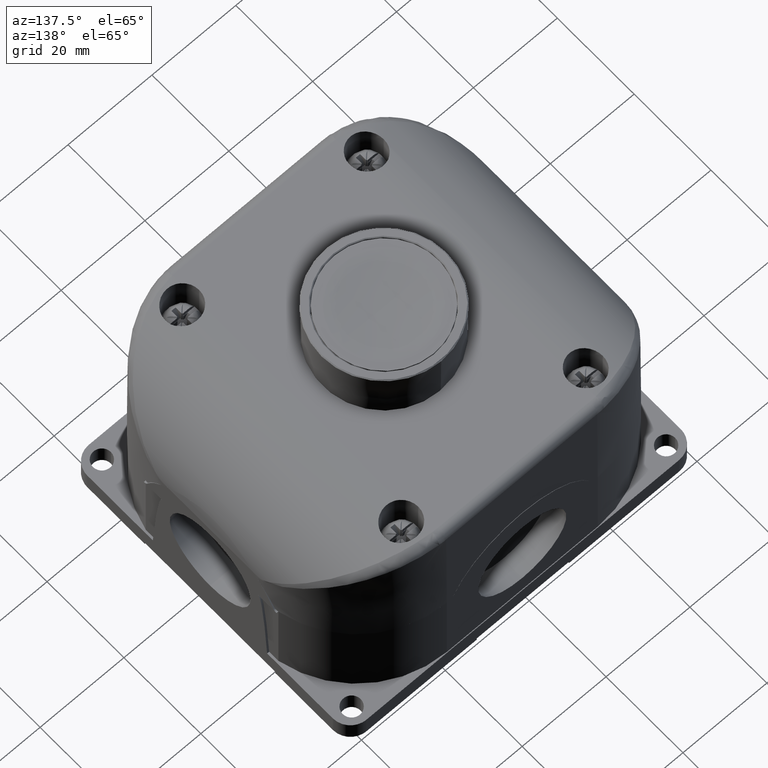
[diagram: clean part render]
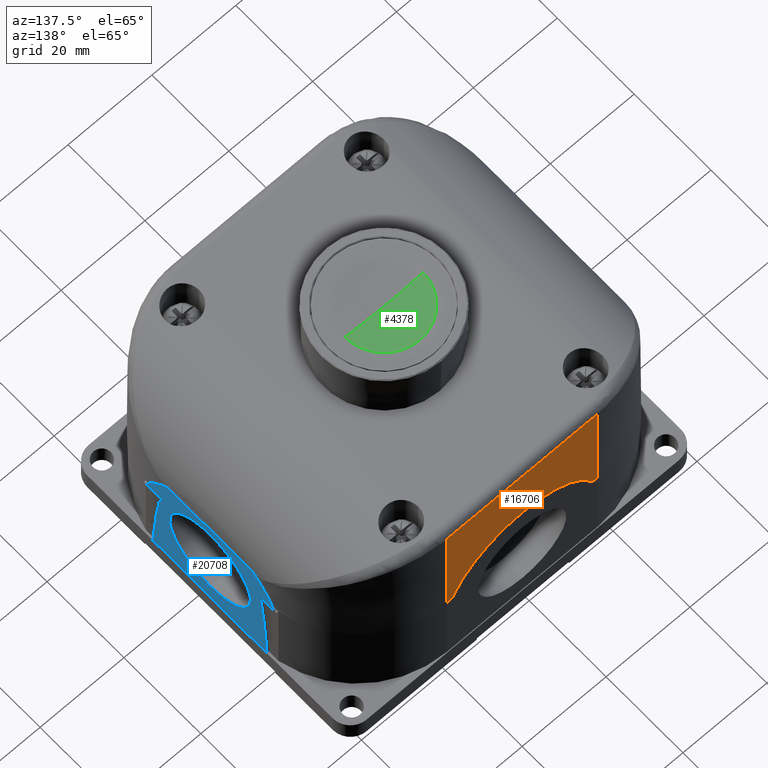
[diagram: same view with three faces highlighted in distinct colors, each labeled with its STEP entity id]
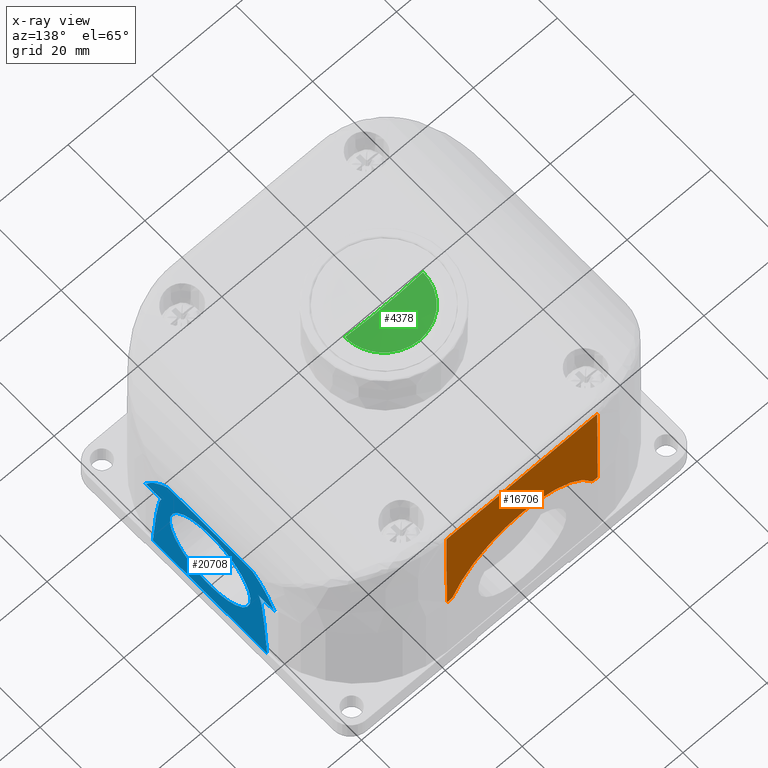
[diagram: x-ray of the same camera — body ghosted, the three highlighted faces saturated]
A machine part, auxiliary view with three faces highlighted in distinct colors.
The next image is the same camera in x-ray (body ghosted, the three faces saturated) — at least one of them is partly hidden behind the body in this view.
Their STEP definitions:

[orange] entity #16706 — the highlighted planar face has unit normal (-0, 1, 0.0058).
#103 = CARTESIAN_POINT ( 'NONE',  ( 1.345744952606165334, -0.008360267248026194420, 1.437007874015747699 ) ) ;
#141 = CARTESIAN_POINT ( 'NONE',  ( 2.450787401574803237, -0.01175284891510926591, 2.020143128453149473 ) ) ;
#198 = EDGE_CURVE ( 'NONE', #20176, #6008, #20568, .T. ) ;
#368 = LINE ( 'NONE', #15123, #9304 ) ;
#960 = CARTESIAN_POINT ( 'NONE',  ( 1.633858267716535195, -0.008360267248026164930, 1.437007874015747921 ) ) ;
#1180 = VERTEX_POINT ( 'NONE', #8136 ) ;
#1527 = CARTESIAN_POINT ( 'NONE',  ( 1.104055193975023386, -0.007447862674232420301, 1.280178849544168385 ) ) ;
#1737 = DIRECTION ( 'NONE',  ( 0.000000000000000000, -0.005817731354993830803, 0.9999830768577441242 ) ) ;
#1853 = DIRECTION ( 'NONE',  ( -1.000000000000000000, -0.000000000000000000, 0.000000000000000000 ) ) ;
#2308 = CARTESIAN_POINT ( 'NONE',  ( 2.342519685039369914, -0.005794924969179654842, 0.9960629921259841479 ) ) ;
#2571 = ORIENTED_EDGE ( 'NONE', *, *, #8994, .T. ) ;
#2791 = CARTESIAN_POINT ( 'NONE',  ( 1.633858267716535195, -0.008360267248026164930, 1.437007874015747921 ) ) ;
#3793 = CARTESIAN_POINT ( 'NONE',  ( 0.9866756952263551206, -0.005917084125315414701, 1.017060367454067915 ) ) ;
#4124 = EDGE_CURVE ( 'NONE', #6008, #16084, #5683, .T. ) ;
#4249 = ORIENTED_EDGE ( 'NONE', *, *, #14868, .T. ) ;
#4346 = ORIENTED_EDGE ( 'NONE', *, *, #198, .T. ) ;
#4736 = VECTOR ( 'NONE', #22420, 39.37007874015748143 ) ;
#4888 = EDGE_CURVE ( 'NONE', #9812, #17733, #10079, .T. ) ;
#4953 = CARTESIAN_POINT ( 'NONE',  ( 2.313399968831224562, -0.005794924969179654842, 0.9960629921259841479 ) ) ;
#5543 = ORIENTED_EDGE ( 'NONE', *, *, #7981, .T. ) ;
#5656 = EDGE_CURVE ( 'NONE', #21848, #20176, #10199, .T. ) ;
#5683 =( BOUNDED_CURVE ( )  B_SPLINE_CURVE ( 3, ( #17387, #19293, #10481, #960 ),
 .UNSPECIFIED., .F., .F. ) 
 B_SPLINE_CURVE_WITH_KNOTS ( ( 4, 4 ),
 ( 1.990409723052550151, 3.141592653589775352 ),
 .UNSPECIFIED. ) 
 CURVE ( )  GEOMETRIC_REPRESENTATION_ITEM ( )  RATIONAL_B_SPLINE_CURVE ( ( 1.000000000000000000, 0.8925803308407000980, 0.8925803308407000980, 1.000000000000000000 ) ) 
 REPRESENTATION_ITEM ( '' )  );
#6008 = VERTEX_POINT ( 'NONE', #6624 ) ;
#6624 = CARTESIAN_POINT ( 'NONE',  ( 2.281040836543564154, -0.005917084173087514345, 1.017060375665409078 ) ) ;
#7118 = ORIENTED_EDGE ( 'NONE', *, *, #4888, .T. ) ;
#7560 = CARTESIAN_POINT ( 'NONE',  ( 2.286909809592913234, -0.005840545218063295657, 1.003904446820571783 ) ) ;
#7981 = EDGE_CURVE ( 'NONE', #1180, #21848, #368, .T. ) ;
#8136 = CARTESIAN_POINT ( 'NONE',  ( 2.342519685039369914, -0.01175284891510981235, 2.020143128453149473 ) ) ;
#8291 = DIRECTION ( 'NONE',  ( 0.000000000000000000, -0.005817731354993830803, 0.9999830768577441242 ) ) ;
#8472 = AXIS2_PLACEMENT_3D ( 'NONE', #16508, #16269, #1737 ) ;
#8873 = EDGE_LOOP ( 'NONE', ( #12049, #2571, #7118, #17680, #5543, #20980, #4346, #10386, #4249 ) ) ;
#8994 = EDGE_CURVE ( 'NONE', #9803, #9812, #21892, .T. ) ;
#9249 = FACE_OUTER_BOUND ( 'NONE', #8873, .T. ) ;
#9304 = VECTOR ( 'NONE', #14657, 39.37007874015748143 ) ;
#9544 = LINE ( 'NONE', #141, #4736 ) ;
#9568 = CARTESIAN_POINT ( 'NONE',  ( 2.313399968831224562, -0.005794924969179654842, 0.9960629921259841479 ) ) ;
#9576 = EDGE_CURVE ( 'NONE', #1180, #17733, #9544, .T. ) ;
#9803 = VERTEX_POINT ( 'NONE', #21316 ) ;
#9812 = VERTEX_POINT ( 'NONE', #14514 ) ;
#9965 = CARTESIAN_POINT ( 'NONE',  ( 0.9251968503936995880, -0.005794924969179928061, 0.9960629921259841479 ) ) ;
#10079 = LINE ( 'NONE', #9965, #23161 ) ;
#10199 = LINE ( 'NONE', #17452, #20875 ) ;
#10204 = CARTESIAN_POINT ( 'NONE',  ( 0.9866756952263551206, -0.005917084125315414701, 1.017060367454067915 ) ) ;
#10386 = ORIENTED_EDGE ( 'NONE', *, *, #4124, .T. ) ;
#10455 = CARTESIAN_POINT ( 'NONE',  ( 0.9251968503937003652, -0.01175284891511090522, 2.020143128453149473 ) ) ;
#10481 = CARTESIAN_POINT ( 'NONE',  ( 1.921971579267031993, -0.008360267248026137174, 1.437007874015748810 ) ) ;
#11003 = CARTESIAN_POINT ( 'NONE',  ( 2.298994299515833006, -0.005794924969179864743, 0.9960629921259840369 ) ) ;
#11603 = CARTESIAN_POINT ( 'NONE',  ( 0.9808067202889217961, -0.005840545197869550544, 1.003904443349562969 ) ) ;
#12049 = ORIENTED_EDGE ( 'NONE', *, *, #17210, .T. ) ;
#12698 =( BOUNDED_CURVE ( )  B_SPLINE_CURVE ( 3, ( #18075, #103, #1527, #3793 ),
 .UNSPECIFIED., .F., .T. ) 
 B_SPLINE_CURVE_WITH_KNOTS ( ( 4, 4 ),
 ( 3.141592653589775352, 4.292775596814826677 ),
 .UNSPECIFIED. ) 
 CURVE ( )  GEOMETRIC_REPRESENTATION_ITEM ( )  RATIONAL_B_SPLINE_CURVE ( ( 1.000000000000000000, 0.8925803285385742747, 0.8925803285385742747, 1.000000000000000000 ) ) 
 REPRESENTATION_ITEM ( '' )  );
#13652 = DIRECTION ( 'NONE',  ( -1.000000000000000000, -0.000000000000000000, 0.000000000000000000 ) ) ;
#13883 = VECTOR ( 'NONE', #1853, 39.37007874015748143 ) ;
#14514 = CARTESIAN_POINT ( 'NONE',  ( 0.9251968503937001431, -0.005794924969179654842, 0.9960629921259841479 ) ) ;
#14657 = DIRECTION ( 'NONE',  ( -0.000000000000000000, 0.005817731354993830803, -0.9999830768577441242 ) ) ;
#14810 = CARTESIAN_POINT ( 'NONE',  ( 2.281040836543564154, -0.005917084173087514345, 1.017060375665409078 ) ) ;
#14868 = EDGE_CURVE ( 'NONE', #16084, #15900, #12698, .T. ) ;
#15123 = CARTESIAN_POINT ( 'NONE',  ( 2.342519685039369470, -0.005794924969179654842, 0.9960629921259841479 ) ) ;
#15890 =( BOUNDED_CURVE ( )  B_SPLINE_CURVE ( 3, ( #19098, #11603, #18978, #18862 ),
 .UNSPECIFIED., .F., .F. ) 
 B_SPLINE_CURVE_WITH_KNOTS ( ( 4, 4 ),
 ( 1.990409710364767326, 3.141592653589811324 ),
 .UNSPECIFIED. ) 
 CURVE ( )  GEOMETRIC_REPRESENTATION_ITEM ( )  RATIONAL_B_SPLINE_CURVE ( ( 1.000000000000000000, 0.8925803285385756070, 0.8925803285385756070, 1.000000000000000000 ) ) 
 REPRESENTATION_ITEM ( '' )  );
#15900 = VERTEX_POINT ( 'NONE', #10204 ) ;
#16084 = VERTEX_POINT ( 'NONE', #2791 ) ;
#16267 = CARTESIAN_POINT ( 'NONE',  ( 2.625236719564799426, -0.005794924969179654842, 0.9960629921259841479 ) ) ;
#16269 = DIRECTION ( 'NONE',  ( -1.070076372205279976E-16, 0.9999830768577442353, 0.005817731354993831670 ) ) ;
#16508 = CARTESIAN_POINT ( 'NONE',  ( 3.267716535433071279, -0.005794924969179654842, 0.9960629921259841479 ) ) ;
#16706 = ADVANCED_FACE ( 'NONE', ( #9249 ), #19720, .T. ) ;
#17210 = EDGE_CURVE ( 'NONE', #15900, #9803, #15890, .T. ) ;
#17387 = CARTESIAN_POINT ( 'NONE',  ( 2.281040836543564154, -0.005917084173087514345, 1.017060375665409078 ) ) ;
#17452 = CARTESIAN_POINT ( 'NONE',  ( 2.625236719564799426, -0.005794924969179654842, 0.9960629921259841479 ) ) ;
#17680 = ORIENTED_EDGE ( 'NONE', *, *, #9576, .F. ) ;
#17733 = VERTEX_POINT ( 'NONE', #10455 ) ;
#18075 = CARTESIAN_POINT ( 'NONE',  ( 1.633858267716535195, -0.008360267248026164930, 1.437007874015747921 ) ) ;
#18862 = CARTESIAN_POINT ( 'NONE',  ( 0.9543165666018463833, -0.005794924969179654842, 0.9960629921259841479 ) ) ;
#18978 = CARTESIAN_POINT ( 'NONE',  ( 0.9687222323573649874, -0.005794924969179863876, 0.9960629921259841479 ) ) ;
#19098 = CARTESIAN_POINT ( 'NONE',  ( 0.9866756952263551206, -0.005917084125315414701, 1.017060367454067915 ) ) ;
#19293 = CARTESIAN_POINT ( 'NONE',  ( 2.163661335906811978, -0.007447862694426046586, 1.280178853015177198 ) ) ;
#19720 = PLANE ( 'NONE',  #8472 ) ;
#20176 = VERTEX_POINT ( 'NONE', #4953 ) ;
#20568 =( BOUNDED_CURVE ( )  B_SPLINE_CURVE ( 3, ( #9568, #11003, #7560, #14810 ),
 .UNSPECIFIED., .F., .F. ) 
 B_SPLINE_CURVE_WITH_KNOTS ( ( 4, 4 ),
 ( 1.839336172315256748E-14, 1.151183196981616863 ),
 .UNSPECIFIED. ) 
 CURVE ( )  GEOMETRIC_REPRESENTATION_ITEM ( )  RATIONAL_B_SPLINE_CURVE ( ( 1.000000000000000000, 0.8925802824960468174, 0.8925802824960468174, 1.000000000000000000 ) ) 
 REPRESENTATION_ITEM ( '' )  );
#20875 = VECTOR ( 'NONE', #13652, 39.37007874015748143 ) ;
#20980 = ORIENTED_EDGE ( 'NONE', *, *, #5656, .T. ) ;
#21316 = CARTESIAN_POINT ( 'NONE',  ( 0.9543165666018463833, -0.005794924969179654842, 0.9960629921259841479 ) ) ;
#21848 = VERTEX_POINT ( 'NONE', #2308 ) ;
#21892 = LINE ( 'NONE', #16267, #13883 ) ;
#22420 = DIRECTION ( 'NONE',  ( -1.000000000000000000, -1.070094481566419881E-16, 0.000000000000000000 ) ) ;
#23161 = VECTOR ( 'NONE', #8291, 39.37007874015748143 ) ;

[blue] entity #20708 — the highlighted planar face has unit normal (-1, 0, -0.0017).
#63 = CARTESIAN_POINT ( 'NONE',  ( 3.265945488093066285, -0.9309917753628805803, 1.246595906176531710 ) ) ;
#83 = B_SPLINE_CURVE_WITH_KNOTS ( 'NONE', 3,
 ( #428, #14956, #20666, #16852, #5911, #4339, #6139, #13512, #11616, #20441, #18873, #2555, #9824, #4232, #20553, #4453, #540, #2680, #9949, #2438 ),
 .UNSPECIFIED., .F., .F.,
 ( 4, 2, 2, 2, 2, 2, 2, 2, 2, 4 ),
 ( 0.000000000000000000, 0.005194068970927299099, 0.01038813794185459820, 0.01558220691278189643, 0.01817924139824554641, 0.01947775864097737314, 0.02012701726234329344, 0.02045164657302625186, 0.02061396122836773454, 0.02077627588370921374 ),
 .UNSPECIFIED. ) ;
#87 = CARTESIAN_POINT ( 'NONE',  ( 3.266329859121062107, -2.070300332105027508, 1.017060367454066805 ) ) ;
#221 = ORIENTED_EDGE ( 'NONE', *, *, #20289, .T. ) ;
#232 = CARTESIAN_POINT ( 'NONE',  ( 3.266636131370852958, -0.8890454794184899923, 0.8341632167036119316 ) ) ;
#408 = EDGE_CURVE ( 'NONE', #13460, #17791, #12402, .T. ) ;
#428 = CARTESIAN_POINT ( 'NONE',  ( 3.267716535433071279, -2.008574111448147015, 0.1889763779527542098 ) ) ;
#540 = CARTESIAN_POINT ( 'NONE',  ( 3.266372356913691100, -1.922270752087834822, 0.9916818841265112594 ) ) ;
#564 = VERTEX_POINT ( 'NONE', #834 ) ;
#834 = CARTESIAN_POINT ( 'NONE',  ( 3.266365020485550108, -0.7435760585001600642, 0.9960629921259843700 ) ) ;
#921 = EDGE_CURVE ( 'NONE', #564, #10934, #13256, .T. ) ;
#1030 = CARTESIAN_POINT ( 'NONE',  ( 3.267406675908491653, -1.423117759614849209, 0.3740157480314976191 ) ) ;
#1051 = VECTOR ( 'NONE', #15457, 39.37007874015748143 ) ;
#1119 = CARTESIAN_POINT ( 'NONE',  ( 3.266329859121062107, -0.7759351871246679133, 1.017060367454068359 ) ) ;
#1274 = ORIENTED_EDGE ( 'NONE', *, *, #8479, .F. ) ;
#1452 = ORIENTED_EDGE ( 'NONE', *, *, #1674, .F. ) ;
#1654 = CARTESIAN_POINT ( 'NONE',  ( 3.266367297393570013, -0.9268870107966467042, 0.9947032868656363602 ) ) ;
#1674 = EDGE_CURVE ( 'NONE', #7200, #9890, #6316, .T. ) ;
#1715 = DIRECTION ( 'NONE',  ( -0.001674557635903106126, 0.000000000000000000, 0.9999985979273792180 ) ) ;
#1788 = EDGE_CURVE ( 'NONE', #5820, #19125, #10541, .T. ) ;
#2032 = CARTESIAN_POINT ( 'NONE',  ( 3.266351062341084965, -1.915243743866817727, 1.004398402382897793 ) ) ;
#2051 =( BOUNDED_CURVE ( )  B_SPLINE_CURVE ( 3, ( #6827, #10520, #20035, #8975 ),
 .UNSPECIFIED., .F., .T. ) 
 B_SPLINE_CURVE_WITH_KNOTS ( ( 4, 4 ),
 ( 3.800321699361861150, 3.909240174998095618 ),
 .UNSPECIFIED. ) 
 CURVE ( )  GEOMETRIC_REPRESENTATION_ITEM ( )  RATIONAL_B_SPLINE_CURVE ( ( 1.000000000000000000, 0.9990116414485072927, 0.9990116414485072927, 1.000000000000000000 ) ) 
 REPRESENTATION_ITEM ( '' )  );
#2100 = CARTESIAN_POINT ( 'NONE',  ( 3.266351889505116901, -2.076169307042461387, 1.003904443349561415 ) ) ;
#2125 = CARTESIAN_POINT ( 'NONE',  ( 3.267602611180566718, -0.8416049472052572478, 0.2570087289041172451 ) ) ;
#2396 = ORIENTED_EDGE ( 'NONE', *, *, #17910, .F. ) ;
#2438 = CARTESIAN_POINT ( 'NONE',  ( 3.266365020485550108, -1.915243743866817727, 0.9960629921259794850 ) ) ;
#2555 = CARTESIAN_POINT ( 'NONE',  ( 3.266425083224954395, -1.935002027861666196, 0.9601952179132020593 ) ) ;
#2680 = CARTESIAN_POINT ( 'NONE',  ( 3.266367234200712844, -1.919297844469947556, 0.9947410238566747331 ) ) ;
#2786 = CARTESIAN_POINT ( 'NONE',  ( 3.265874923253242912, -1.856898138966789569, 1.288735238603179178 ) ) ;
#2817 =( BOUNDED_CURVE ( )  B_SPLINE_CURVE ( 3, ( #8300, #11990, #22845, #6520 ),
 .UNSPECIFIED., .F., .T. ) 
 B_SPLINE_CURVE_WITH_KNOTS ( ( 4, 4 ),
 ( 1.990409710364741125, 2.367880052844556271 ),
 .UNSPECIFIED. ) 
 CURVE ( )  GEOMETRIC_REPRESENTATION_ITEM ( )  RATIONAL_B_SPLINE_CURVE ( ( 1.000000000000000000, 0.9881615491429942555, 0.9881615491429942555, 1.000000000000000000 ) ) 
 REPRESENTATION_ITEM ( '' )  );
#3136 = CARTESIAN_POINT ( 'NONE',  ( 3.265969455135055988, -1.915243743866817727, 1.232283464566930276 ) ) ;
#3517 = CARTESIAN_POINT ( 'NONE',  ( 3.265964614949557365, -0.9280044403491134464, 1.235173886854313841 ) ) ;
#3537 = CARTESIAN_POINT ( 'NONE',  ( 3.266365020485550108, -2.102659460729538576, 0.9960629921259794850 ) ) ;
#3681 = CARTESIAN_POINT ( 'NONE',  ( 3.266192682610042475, -2.033756007540070243, 1.098978311481190184 ) ) ;
#3689 = CARTESIAN_POINT ( 'NONE',  ( 3.266022197181762454, -1.423117759614849209, 1.200787401574800795 ) ) ;
#3728 =( BOUNDED_CURVE ( )  B_SPLINE_CURVE ( 3, ( #5480, #12736, #20004, #3689 ),
 .UNSPECIFIED., .F., .F. ) 
 B_SPLINE_CURVE_WITH_KNOTS ( ( 4, 4 ),
 ( 3.141592653589793116, 6.283185307179586232 ),
 .UNSPECIFIED. ) 
 CURVE ( )  GEOMETRIC_REPRESENTATION_ITEM ( )  RATIONAL_B_SPLINE_CURVE ( ( 1.000000000000000000, 0.3333333333333333703, 0.3333333333333333703, 1.000000000000000000 ) ) 
 REPRESENTATION_ITEM ( '' )  );
#4232 = CARTESIAN_POINT ( 'NONE',  ( 3.266391222552992080, -1.928308236378246221, 0.9804158563430628304 ) ) ;
#4339 = CARTESIAN_POINT ( 'NONE',  ( 3.266919507707581438, -1.975239235523326808, 0.6649388595724958773 ) ) ;
#4407 = EDGE_CURVE ( 'NONE', #19125, #5820, #3728, .T. ) ;
#4436 = DIRECTION ( 'NONE',  ( -4.149541881765001341E-17, 1.000000000000000000, 2.477989395431022368E-14 ) ) ;
#4453 = CARTESIAN_POINT ( 'NONE',  ( 3.266375354460315350, -1.923465384058744121, 0.9898918338130014982 ) ) ;
#4658 = ORIENTED_EDGE ( 'NONE', *, *, #20805, .T. ) ;
#5205 = EDGE_LOOP ( 'NONE', ( #1274, #11408, #21031, #221, #5810, #6602, #14684, #1452, #4658, #20872, #22261, #23186, #20479, #14742, #14724, #2396 ) ) ;
#5347 = CARTESIAN_POINT ( 'NONE',  ( 3.266375528722370358, -0.9227041721628116422, 0.9897877694266269399 ) ) ;
#5480 = CARTESIAN_POINT ( 'NONE',  ( 3.267406675908491653, -1.423117759614849209, 0.3740157480314976191 ) ) ;
#5535 = DIRECTION ( 'NONE',  ( -0.9999985979273792180, 0.000000000000000000, -0.001674557635903106126 ) ) ;
#5587 = VERTEX_POINT ( 'NONE', #17341 ) ;
#5777 = CARTESIAN_POINT ( 'NONE',  ( 3.266365020485550108, -0.7435760585001598422, 0.9960629921259841479 ) ) ;
#5810 = ORIENTED_EDGE ( 'NONE', *, *, #408, .T. ) ;
#5820 = VERTEX_POINT ( 'NONE', #9477 ) ;
#5831 = CARTESIAN_POINT ( 'NONE',  ( 3.267406675908491653, -2.249889413158152607, 0.3740157480314975635 ) ) ;
#5890 = LINE ( 'NONE', #5777, #13213 ) ;
#5911 = CARTESIAN_POINT ( 'NONE',  ( 3.267147026126190568, -1.986417740009842170, 0.5290712759585548541 ) ) ;
#5948 = CARTESIAN_POINT ( 'NONE',  ( 3.267716535433071279, -0.8376614077815629500, 0.1889763779527542098 ) ) ;
#6096 = CARTESIAN_POINT ( 'NONE',  ( 3.265959618794199049, -1.921314677486742450, 1.238157449943723565 ) ) ;
#6139 = CARTESIAN_POINT ( 'NONE',  ( 3.266805805671483043, -1.969085874729274988, 0.7328385091524178829 ) ) ;
#6260 = CARTESIAN_POINT ( 'NONE',  ( 3.266351889505116013, -0.7700662121872352550, 1.003904443349563191 ) ) ;
#6291 = CARTESIAN_POINT ( 'NONE',  ( 3.265959445100238945, -0.9309917753628805803, 1.238261175078014809 ) ) ;
#6316 = B_SPLINE_CURVE_WITH_KNOTS ( 'NONE', 3,
 ( #8678, #21431, #1654, #7142, #5347, #17493, #8446, #19992, #20112, #16773, #22280, #13080, #232, #14515, #21805, #12970, #20358, #16657, #2125, #5948 ),
 .UNSPECIFIED., .F., .F.,
 ( 4, 2, 2, 2, 2, 2, 2, 2, 2, 4 ),
 ( 0.000000000000000000, 0.0001635871619742030973, 0.0003271743239484061947, 0.0006543486478967981863, 0.001308697295793578592, 0.002617394591587129428, 0.005234789183174231968, 0.01046957836634843791, 0.01570436754952264299, 0.02093915673269684807 ),
 .UNSPECIFIED. ) ;
#6520 = CARTESIAN_POINT ( 'NONE',  ( 3.265964458973070084, -0.9279081725469124908, 1.235267031613692001 ) ) ;
#6602 = ORIENTED_EDGE ( 'NONE', *, *, #13299, .F. ) ;
#6692 = CARTESIAN_POINT ( 'NONE',  ( 3.266365020485550108, -2.102659460729538576, 0.9960629921259794850 ) ) ;
#6805 = DIRECTION ( 'NONE',  ( -4.149541881764993329E-17, 1.000000000000000000, 2.477989395431017635E-14 ) ) ;
#6827 = CARTESIAN_POINT ( 'NONE',  ( 3.265874923253242912, -0.9893373802629100711, 1.288735238603179178 ) ) ;
#7142 = CARTESIAN_POINT ( 'NONE',  ( 3.266372488552852893, -0.9239028905827447735, 0.9916032729314774308 ) ) ;
#7200 = VERTEX_POINT ( 'NONE', #11269 ) ;
#7447 = VERTEX_POINT ( 'NONE', #3136 ) ;
#7993 = VERTEX_POINT ( 'NONE', #11449 ) ;
#8300 = CARTESIAN_POINT ( 'NONE',  ( 3.266329859121062107, -0.7759351871246679133, 1.017060367454068359 ) ) ;
#8446 = CARTESIAN_POINT ( 'NONE',  ( 3.266391470304943923, -0.9178689264602253317, 0.9802679058640980658 ) ) ;
#8479 = EDGE_CURVE ( 'NONE', #7447, #23301, #11334, .T. ) ;
#8571 = DIRECTION ( 'NONE',  ( -0.001164410303451948953, -0.7186674151770634511, 0.6953529970535566873 ) ) ;
#8678 = CARTESIAN_POINT ( 'NONE',  ( 3.266365020485550108, -0.9309917753628806913, 0.9960629921259771535 ) ) ;
#8975 = CARTESIAN_POINT ( 'NONE',  ( 3.265959445100238945, -0.9309917753628805803, 1.238261175078014809 ) ) ;
#9048 = CARTESIAN_POINT ( 'NONE',  ( 3.266329859121062107, -2.070300332105027508, 1.017060367454066805 ) ) ;
#9049 = CARTESIAN_POINT ( 'NONE',  ( 3.266329859121062107, -0.7759351871246679133, 1.017060367454068359 ) ) ;
#9265 = CARTESIAN_POINT ( 'NONE',  ( 3.265901308774011191, -1.877253766238069943, 1.272978549667360015 ) ) ;
#9461 = LINE ( 'NONE', #63, #11240 ) ;
#9477 = CARTESIAN_POINT ( 'NONE',  ( 3.266022197181762454, -1.423117759614849209, 1.200787401574800795 ) ) ;
#9824 = CARTESIAN_POINT ( 'NONE',  ( 3.266411301038543602, -1.932742440013880625, 0.9684255509803813000 ) ) ;
#9890 = VERTEX_POINT ( 'NONE', #12851 ) ;
#9949 = CARTESIAN_POINT ( 'NONE',  ( 3.266365020485550108, -1.917409829759599393, 0.9960629921259751551 ) ) ;
#10108 = VECTOR ( 'NONE', #21665, 39.37007874015748143 ) ;
#10142 = VERTEX_POINT ( 'NONE', #6291 ) ;
#10179 = CARTESIAN_POINT ( 'NONE',  ( 3.266365020485550108, -0.7435760585001600642, 0.9960629921259843700 ) ) ;
#10520 = CARTESIAN_POINT ( 'NONE',  ( 3.265901308774011191, -0.9689817529916667782, 1.272978549667389769 ) ) ;
#10541 =( BOUNDED_CURVE ( )  B_SPLINE_CURVE ( 3, ( #10831, #14755, #5831, #16537 ),
 .UNSPECIFIED., .F., .F. ) 
 B_SPLINE_CURVE_WITH_KNOTS ( ( 4, 4 ),
 ( 0.000000000000000000, 3.141592653589793116 ),
 .UNSPECIFIED. ) 
 CURVE ( )  GEOMETRIC_REPRESENTATION_ITEM ( )  RATIONAL_B_SPLINE_CURVE ( ( 1.000000000000000000, 0.3333333333333333703, 0.3333333333333333703, 1.000000000000000000 ) ) 
 REPRESENTATION_ITEM ( '' )  );
#10628 = CARTESIAN_POINT ( 'NONE',  ( 3.265969455135055988, -0.9309917753628805803, 1.232283464566928943 ) ) ;
#10831 = CARTESIAN_POINT ( 'NONE',  ( 3.266022197181762454, -1.423117759614849209, 1.200787401574800795 ) ) ;
#10896 = FACE_BOUND ( 'NONE', #13601, .T. ) ;
#10902 = DIRECTION ( 'NONE',  ( 0.001164410291587323785, -0.7186674220324492657, -0.6953529899683369431 ) ) ;
#10934 = VERTEX_POINT ( 'NONE', #9049 ) ;
#10937 = CARTESIAN_POINT ( 'NONE',  ( 3.265959445100239389, -1.915243743866817727, 1.238261175077808973 ) ) ;
#11240 = VECTOR ( 'NONE', #20307, 39.37007874015748143 ) ;
#11269 = CARTESIAN_POINT ( 'NONE',  ( 3.266365020485550108, -0.9309917753628806913, 0.9960629921259771535 ) ) ;
#11334 = LINE ( 'NONE', #2032, #22646 ) ;
#11408 = ORIENTED_EDGE ( 'NONE', *, *, #22369, .T. ) ;
#11449 = CARTESIAN_POINT ( 'NONE',  ( 3.267716535433071279, -2.008574111448147015, 0.1889763779527542098 ) ) ;
#11616 = CARTESIAN_POINT ( 'NONE',  ( 3.266579134779513005, -1.952782607814159244, 0.8681999737565440078 ) ) ;
#11990 = CARTESIAN_POINT ( 'NONE',  ( 3.266192682610064235, -0.8124795116834311326, 1.098978311468280511 ) ) ;
#12369 = CARTESIAN_POINT ( 'NONE',  ( 3.266329859121062107, -2.070300332105027508, 1.017060367454066805 ) ) ;
#12402 = LINE ( 'NONE', #14305, #18999 ) ;
#12502 = VERTEX_POINT ( 'NONE', #2786 ) ;
#12598 = CARTESIAN_POINT ( 'NONE',  ( 3.265929510596523144, -1.896721542347753919, 1.256137216549976232 ) ) ;
#12736 = CARTESIAN_POINT ( 'NONE',  ( 3.267406675908491653, -0.5963461060715460338, 0.3740157480314975080 ) ) ;
#12851 = CARTESIAN_POINT ( 'NONE',  ( 3.267716535433071279, -0.8376614077815629500, 0.1889763779527542098 ) ) ;
#12970 = CARTESIAN_POINT ( 'NONE',  ( 3.267147174829974521, -0.8598110330913087962, 0.5289824742519333434 ) ) ;
#13080 = CARTESIAN_POINT ( 'NONE',  ( 3.266579501872171942, -0.8934198898905567621, 0.8679807563727194308 ) ) ;
#13213 = VECTOR ( 'NONE', #4436, 39.37007874015748143 ) ;
#13256 =( BOUNDED_CURVE ( )  B_SPLINE_CURVE ( 3, ( #10179, #17430, #6260, #1119 ),
 .UNSPECIFIED., .F., .T. ) 
 B_SPLINE_CURVE_WITH_KNOTS ( ( 4, 4 ),
 ( 0.000000000000000000, 1.151182943225040223 ),
 .UNSPECIFIED. ) 
 CURVE ( )  GEOMETRIC_REPRESENTATION_ITEM ( )  RATIONAL_B_SPLINE_CURVE ( ( 1.000000000000000000, 0.8925803285385761621, 0.8925803285385761621, 1.000000000000000000 ) ) 
 REPRESENTATION_ITEM ( '' )  );
#13299 = EDGE_CURVE ( 'NONE', #7993, #17791, #83, .T. ) ;
#13460 = VERTEX_POINT ( 'NONE', #6692 ) ;
#13512 = CARTESIAN_POINT ( 'NONE',  ( 3.266635757552912800, -1.957162446566343972, 0.8343864502358534496 ) ) ;
#13601 = EDGE_LOOP ( 'NONE', ( #14616, #15661 ) ) ;
#13956 = VERTEX_POINT ( 'NONE', #12369 ) ;
#14046 = VERTEX_POINT ( 'NONE', #22278 ) ;
#14228 = EDGE_CURVE ( 'NONE', #15456, #21125, #23307, .T. ) ;
#14305 = CARTESIAN_POINT ( 'NONE',  ( 3.266365020485550108, -1.915243743866817505, 0.9960629921259841479 ) ) ;
#14515 = CARTESIAN_POINT ( 'NONE',  ( 3.266806097333509573, -0.8771319704939626316, 0.7326643368155069114 ) ) ;
#14616 = ORIENTED_EDGE ( 'NONE', *, *, #4407, .F. ) ;
#14684 = ORIENTED_EDGE ( 'NONE', *, *, #17810, .T. ) ;
#14724 = ORIENTED_EDGE ( 'NONE', *, *, #21228, .F. ) ;
#14742 = ORIENTED_EDGE ( 'NONE', *, *, #18664, .F. ) ;
#14755 = CARTESIAN_POINT ( 'NONE',  ( 3.266022197181762454, -2.249889413158152607, 1.200787401574801017 ) ) ;
#14956 = CARTESIAN_POINT ( 'NONE',  ( 3.267602581516459548, -2.004629545187950335, 0.2570264434731504566 ) ) ;
#14990 = CARTESIAN_POINT ( 'NONE',  ( 3.266069423362146118, -1.982491452810527077, 1.172585258435410838 ) ) ;
#15023 = LINE ( 'NONE', #20274, #1051 ) ;
#15140 = LINE ( 'NONE', #6096, #17062 ) ;
#15456 = VERTEX_POINT ( 'NONE', #19043 ) ;
#15457 = DIRECTION ( 'NONE',  ( -0.000000000000000000, 1.000000000000000000, -0.000000000000000000 ) ) ;
#15661 = ORIENTED_EDGE ( 'NONE', *, *, #1788, .F. ) ;
#15952 = EDGE_CURVE ( 'NONE', #10934, #15456, #2817, .T. ) ;
#16051 = LINE ( 'NONE', #20095, #10108 ) ;
#16421 = CARTESIAN_POINT ( 'NONE',  ( 3.265964458973022122, -1.918327346652218157, 1.235267031642978575 ) ) ;
#16537 = CARTESIAN_POINT ( 'NONE',  ( 3.267406675908491653, -1.423117759614849209, 0.3740157480314976191 ) ) ;
#16657 = CARTESIAN_POINT ( 'NONE',  ( 3.267488713654397969, -0.8457876572704986495, 0.3250251196413642130 ) ) ;
#16662 =( BOUNDED_CURVE ( )  B_SPLINE_CURVE ( 3, ( #10937, #12598, #9265, #23466 ),
 .UNSPECIFIED., .F., .F. ) 
 B_SPLINE_CURVE_WITH_KNOTS ( ( 4, 4 ),
 ( 2.373945132181288997, 2.482863607817723750 ),
 .UNSPECIFIED. ) 
 CURVE ( )  GEOMETRIC_REPRESENTATION_ITEM ( )  RATIONAL_B_SPLINE_CURVE ( ( 1.000000000000000000, 0.9990116414485035179, 0.9990116414485035179, 1.000000000000000000 ) ) 
 REPRESENTATION_ITEM ( '' )  );
#16773 = CARTESIAN_POINT ( 'NONE',  ( 3.266467004423600162, -0.9050606395441164187, 0.9351610602518242166 ) ) ;
#16852 = CARTESIAN_POINT ( 'NONE',  ( 3.267260873394024046, -1.991332390630238480, 0.4610848980822024323 ) ) ;
#17062 = VECTOR ( 'NONE', #8571, 39.37007874015748143 ) ;
#17341 = CARTESIAN_POINT ( 'NONE',  ( 3.265874923253242912, -0.9893373802629100711, 1.288735238603179178 ) ) ;
#17430 = CARTESIAN_POINT ( 'NONE',  ( 3.266365020485550108, -0.7579817242556783352, 0.9960629921259845920 ) ) ;
#17493 = CARTESIAN_POINT ( 'NONE',  ( 3.266384868351762893, -0.9194931188204988892, 0.9842104061296672590 ) ) ;
#17791 = VERTEX_POINT ( 'NONE', #21301 ) ;
#17810 = EDGE_CURVE ( 'NONE', #7993, #9890, #16051, .T. ) ;
#17910 = EDGE_CURVE ( 'NONE', #23301, #12502, #16662, .T. ) ;
#18303 = VECTOR ( 'NONE', #10902, 39.37007874015748854 ) ;
#18354 = DIRECTION ( 'NONE',  ( -0.001674557635903105692, -5.639687569330517795E-16, 0.9999985979273791070 ) ) ;
#18664 = EDGE_CURVE ( 'NONE', #5587, #10142, #2051, .T. ) ;
#18873 = CARTESIAN_POINT ( 'NONE',  ( 3.266466651351478401, -1.941129222676657662, 0.9353719049659710016 ) ) ;
#18999 = VECTOR ( 'NONE', #6805, 39.37007874015748143 ) ;
#19043 = CARTESIAN_POINT ( 'NONE',  ( 3.265964458973070084, -0.9279081725469124908, 1.235267031613692001 ) ) ;
#19093 =( BOUNDED_CURVE ( )  B_SPLINE_CURVE ( 3, ( #87, #2100, #20080, #3537 ),
 .UNSPECIFIED., .F., .T. ) 
 B_SPLINE_CURVE_WITH_KNOTS ( ( 4, 4 ),
 ( 5.132002363954541124, 6.283185307179586232 ),
 .UNSPECIFIED. ) 
 CURVE ( )  GEOMETRIC_REPRESENTATION_ITEM ( )  RATIONAL_B_SPLINE_CURVE ( ( 1.000000000000000000, 0.8925803285385752739, 0.8925803285385752739, 1.000000000000000000 ) ) 
 REPRESENTATION_ITEM ( '' )  );
#19125 = VERTEX_POINT ( 'NONE', #1030 ) ;
#19910 = EDGE_CURVE ( 'NONE', #14046, #13956, #21397, .T. ) ;
#19992 = CARTESIAN_POINT ( 'NONE',  ( 3.266411595500400722, -0.9134355648269374406, 0.9682497066632802518 ) ) ;
#20004 = CARTESIAN_POINT ( 'NONE',  ( 3.266022197181762454, -0.5963461060715460338, 1.200787401574801017 ) ) ;
#20035 = CARTESIAN_POINT ( 'NONE',  ( 3.265929510596523588, -0.9495139768820172188, 1.256137216550039071 ) ) ;
#20080 = CARTESIAN_POINT ( 'NONE',  ( 3.266365020485550108, -2.088253794974018973, 0.9960629921259819275 ) ) ;
#20095 = CARTESIAN_POINT ( 'NONE',  ( 3.267716535433071279, -2.848178006270197127, 0.1889763779527542098 ) ) ;
#20112 = CARTESIAN_POINT ( 'NONE',  ( 3.266425442990724459, -0.9111773319355922496, 0.9599803759406044801 ) ) ;
#20179 = FACE_OUTER_BOUND ( 'NONE', #5205, .T. ) ;
#20274 = CARTESIAN_POINT ( 'NONE',  ( 3.265874923253242912, -2.848178006270197127, 1.288735238603179178 ) ) ;
#20289 = EDGE_CURVE ( 'NONE', #13956, #13460, #19093, .T. ) ;
#20307 = DIRECTION ( 'NONE',  ( 0.001674557635903105692, 0.000000000000000000, -0.9999985979273791070 ) ) ;
#20358 = CARTESIAN_POINT ( 'NONE',  ( 3.267261001821415878, -0.8548977970116323766, 0.4610082048639595476 ) ) ;
#20441 = CARTESIAN_POINT ( 'NONE',  ( 3.266494720567264309, -1.944262865063594692, 0.9186097608455825458 ) ) ;
#20479 = ORIENTED_EDGE ( 'NONE', *, *, #21580, .F. ) ;
#20553 = CARTESIAN_POINT ( 'NONE',  ( 3.266384598028485797, -1.926661009203000541, 0.9843718355679119680 ) ) ;
#20666 = CARTESIAN_POINT ( 'NONE',  ( 3.267488652726966425, -2.000445617808043863, 0.3250615037868764268 ) ) ;
#20708 = ADVANCED_FACE ( 'NONE', ( #10896, #20179 ), #21869, .F. ) ;
#20805 = EDGE_CURVE ( 'NONE', #7200, #564, #5890, .T. ) ;
#20872 = ORIENTED_EDGE ( 'NONE', *, *, #921, .T. ) ;
#21031 = ORIENTED_EDGE ( 'NONE', *, *, #19910, .T. ) ;
#21078 = CARTESIAN_POINT ( 'NONE',  ( 3.265959445100239389, -1.915243743866817727, 1.238261175077808973 ) ) ;
#21125 = VERTEX_POINT ( 'NONE', #10628 ) ;
#21203 = AXIS2_PLACEMENT_3D ( 'NONE', #23421, #5535, #1715 ) ;
#21228 = EDGE_CURVE ( 'NONE', #12502, #5587, #15023, .T. ) ;
#21301 = CARTESIAN_POINT ( 'NONE',  ( 3.266365020485550108, -1.915243743866817727, 0.9960629921259794850 ) ) ;
#21397 =( BOUNDED_CURVE ( )  B_SPLINE_CURVE ( 3, ( #16421, #14990, #3681, #9048 ),
 .UNSPECIFIED., .F., .F. ) 
 B_SPLINE_CURVE_WITH_KNOTS ( ( 4, 4 ),
 ( 3.915305254275295965, 4.292775596814845329 ),
 .UNSPECIFIED. ) 
 CURVE ( )  GEOMETRIC_REPRESENTATION_ITEM ( )  RATIONAL_B_SPLINE_CURVE ( ( 1.000000000000000000, 0.9881615491392585771, 0.9881615491392585771, 1.000000000000000000 ) ) 
 REPRESENTATION_ITEM ( '' )  );
#21431 = CARTESIAN_POINT ( 'NONE',  ( 3.266365020485549220, -0.9287987923049910721, 0.9960629921259749331 ) ) ;
#21580 = EDGE_CURVE ( 'NONE', #10142, #21125, #9461, .T. ) ;
#21665 = DIRECTION ( 'NONE',  ( -0.000000000000000000, 1.000000000000000000, -0.000000000000000000 ) ) ;
#21805 = CARTESIAN_POINT ( 'NONE',  ( 3.266919724114637713, -0.8709850920139763364, 0.6648096273800324640 ) ) ;
#21869 = PLANE ( 'NONE',  #21203 ) ;
#22261 = ORIENTED_EDGE ( 'NONE', *, *, #15952, .T. ) ;
#22278 = CARTESIAN_POINT ( 'NONE',  ( 3.265964458973022122, -1.918327346652218157, 1.235267031642978575 ) ) ;
#22280 = CARTESIAN_POINT ( 'NONE',  ( 3.266495052651603004, -0.9019371422832744845, 0.9184114494434582054 ) ) ;
#22369 = EDGE_CURVE ( 'NONE', #7447, #14046, #15140, .T. ) ;
#22646 = VECTOR ( 'NONE', #18354, 39.37007874015748143 ) ;
#22845 = CARTESIAN_POINT ( 'NONE',  ( 3.266069423362184754, -0.8637440664025951564, 1.172585258412285780 ) ) ;
#23186 = ORIENTED_EDGE ( 'NONE', *, *, #14228, .T. ) ;
#23301 = VERTEX_POINT ( 'NONE', #21078 ) ;
#23307 = LINE ( 'NONE', #3517, #18303 ) ;
#23421 = CARTESIAN_POINT ( 'NONE',  ( 3.265874923253242912, -2.848178006270197127, 1.288735238603179178 ) ) ;
#23466 = CARTESIAN_POINT ( 'NONE',  ( 3.265874923253242912, -1.856898138966789569, 1.288735238603179178 ) ) ;

[green] entity #4378 — the highlighted face is a freeform B-spline surface patch.
#526 = EDGE_CURVE ( 'NONE', #22063, #9703, #4151, .T. ) ;
#1061 = CARTESIAN_POINT ( 'NONE',  ( 1.999721186793211869, -0.6913919214614986375, 2.605915847829026966 ) ) ;
#2017 = CARTESIAN_POINT ( 'NONE',  ( 2.004078734467627410, -1.059212058185129424, 2.633763768472905387 ) ) ;
#2761 = DIRECTION ( 'NONE',  ( 1.000000000000000000, -5.515813914075698652E-16, 0.000000000000000000 ) ) ;
#3334 = CARTESIAN_POINT ( 'NONE',  ( 1.758196665926472058, -1.053686717056935507, 2.596999274011665193 ) ) ;
#3570 = CARTESIAN_POINT ( 'NONE',  ( 2.004078734467627854, -1.179724622691867841, 2.615651917925492675 ) ) ;
#4151 =( BOUNDED_CURVE ( )  B_SPLINE_CURVE ( 3, ( #13686, #9657, #1061, #22530 ),
 .UNSPECIFIED., .F., .T. ) 
 B_SPLINE_CURVE_WITH_KNOTS ( ( 4, 4 ),
 ( 0.000000000000000000, 0.5000000000000000000 ),
 .UNSPECIFIED. ) 
 CURVE ( )  GEOMETRIC_REPRESENTATION_ITEM ( )  RATIONAL_B_SPLINE_CURVE ( ( 1.000000000000000000, 0.3333333333333333703, 0.3333333333333333703, 1.000000000000000000 ) ) 
 REPRESENTATION_ITEM ( '' )  );
#4378 = ADVANCED_FACE ( 'NONE', ( #12385 ), #22735, .F. ) ;
#4734 = CARTESIAN_POINT ( 'NONE',  ( 1.999721186793210759, -1.423117759614848099, 2.605915847829026077 ) ) ;
#5357 = CARTESIAN_POINT ( 'NONE',  ( 1.263637800965443647, -1.423117759614846101, 2.606570744177599597 ) ) ;
#7153 = CARTESIAN_POINT ( 'NONE',  ( 1.758196665926471836, -1.299401433516732318, 2.569393366007891366 ) ) ;
#7187 = ORIENTED_EDGE ( 'NONE', *, *, #526, .F. ) ;
#8690 = EDGE_CURVE ( 'NONE', #9703, #22063, #10839, .T. ) ;
#8813 = CARTESIAN_POINT ( 'NONE',  ( 1.758196665926472058, -1.423117759614846101, 2.569393366007892254 ) ) ;
#9657 = CARTESIAN_POINT ( 'NONE',  ( 1.267995348639860742, -0.6913919214614980824, 2.605915847829026966 ) ) ;
#9703 = VERTEX_POINT ( 'NONE', #4734 ) ;
#10028 = CARTESIAN_POINT ( 'NONE',  ( 1.633858267716535195, -1.423117759614846323, 5.055118185191175506 ) ) ;
#10600 = CARTESIAN_POINT ( 'NONE',  ( 2.004078734467627854, -1.301251778577304563, 2.606570744177599597 ) ) ;
#10839 = CIRCLE ( 'NONE', #15395, 2.476377952755905554 ) ;
#12385 = FACE_OUTER_BOUND ( 'NONE', #21009, .T. ) ;
#12624 = CARTESIAN_POINT ( 'NONE',  ( 1.263637800965443647, -1.059212058185128758, 2.633763768472905387 ) ) ;
#13530 = ORIENTED_EDGE ( 'NONE', *, *, #8690, .F. ) ;
#13686 = CARTESIAN_POINT ( 'NONE',  ( 1.267995348639860520, -1.423117759614847655, 2.605915847829026522 ) ) ;
#14173 = CARTESIAN_POINT ( 'NONE',  ( 2.004078734467627410, -1.423117759614846545, 2.606570744177599597 ) ) ;
#14406 = CARTESIAN_POINT ( 'NONE',  ( 1.509519869506598777, -1.423117759614846101, 2.569393366007892254 ) ) ;
#14525 = CARTESIAN_POINT ( 'NONE',  ( 1.509519869506598777, -1.053686717056935507, 2.596999274011665193 ) ) ;
#15395 = AXIS2_PLACEMENT_3D ( 'NONE', #10028, #18956, #2761 ) ;
#16077 = CARTESIAN_POINT ( 'NONE',  ( 1.509519869506598999, -1.176029077102785037, 2.578612423231103623 ) ) ;
#18097 = CARTESIAN_POINT ( 'NONE',  ( 1.758196665926471836, -1.176029077102785037, 2.578612423231103623 ) ) ;
#18956 = DIRECTION ( 'NONE',  ( 5.665538897647979615E-16, 1.000000000000000000, 0.000000000000000000 ) ) ;
#19438 = CARTESIAN_POINT ( 'NONE',  ( 1.267995348639860520, -1.423117759614847655, 2.605915847829026522 ) ) ;
#19642 = CARTESIAN_POINT ( 'NONE',  ( 1.263637800965443869, -1.301251778577304119, 2.606570744177599597 ) ) ;
#21009 = EDGE_LOOP ( 'NONE', ( #13530, #7187 ) ) ;
#21696 = CARTESIAN_POINT ( 'NONE',  ( 1.509519869506598999, -1.299401433516732318, 2.569393366007891366 ) ) ;
#22063 = VERTEX_POINT ( 'NONE', #19438 ) ;
#22530 = CARTESIAN_POINT ( 'NONE',  ( 1.999721186793210759, -1.423117759614848099, 2.605915847829026077 ) ) ;
#22735 =( BOUNDED_SURFACE ( )  B_SPLINE_SURFACE ( 3, 3, ( 
 ( #14173, #10600, #3570, #2017 ),
 ( #8813, #7153, #18097, #3334 ),
 ( #14406, #21696, #16077, #14525 ),
 ( #5357, #19642, #23368, #12624 ) ),
 .UNSPECIFIED., .F., .F., .F. ) 
 B_SPLINE_SURFACE_WITH_KNOTS ( ( 4, 4 ),
 ( 4, 4 ),
 ( 0.000000000000000000, 1.000000000000000000 ),
 ( 0.000000000000000000, 1.000000000000000000 ),
 .UNSPECIFIED. ) 
 GEOMETRIC_REPRESENTATION_ITEM ( )  RATIONAL_B_SPLINE_SURFACE ( (
 ( 1.000000000000000000, 0.9981464602933974861, 0.9981464602933974861, 1.000000000000000000),
 ( 0.9925077371674069227, 0.9906680846674569274, 0.9906680846674569274, 0.9925077371674069227),
 ( 0.9925077371674069227, 0.9906680846674569274, 0.9906680846674569274, 0.9925077371674069227),
 ( 1.000000000000000000, 0.9981464602933974861, 0.9981464602933974861, 1.000000000000000000) ) ) 
 REPRESENTATION_ITEM ( '' )  SURFACE ( )  );
#23368 = CARTESIAN_POINT ( 'NONE',  ( 1.263637800965443869, -1.179724622691867397, 2.615651917925492675 ) ) ;